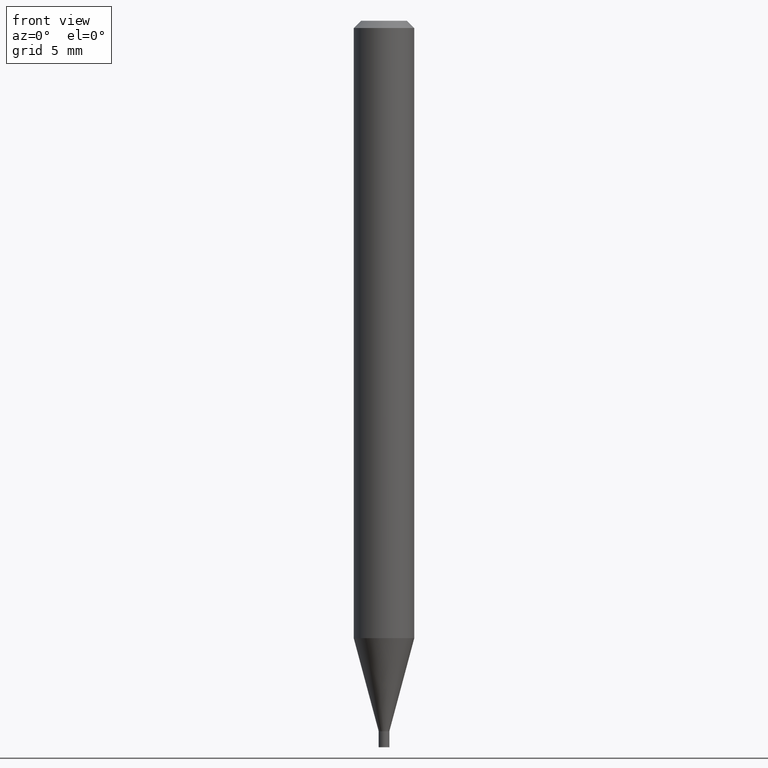
[diagram: clean part render]
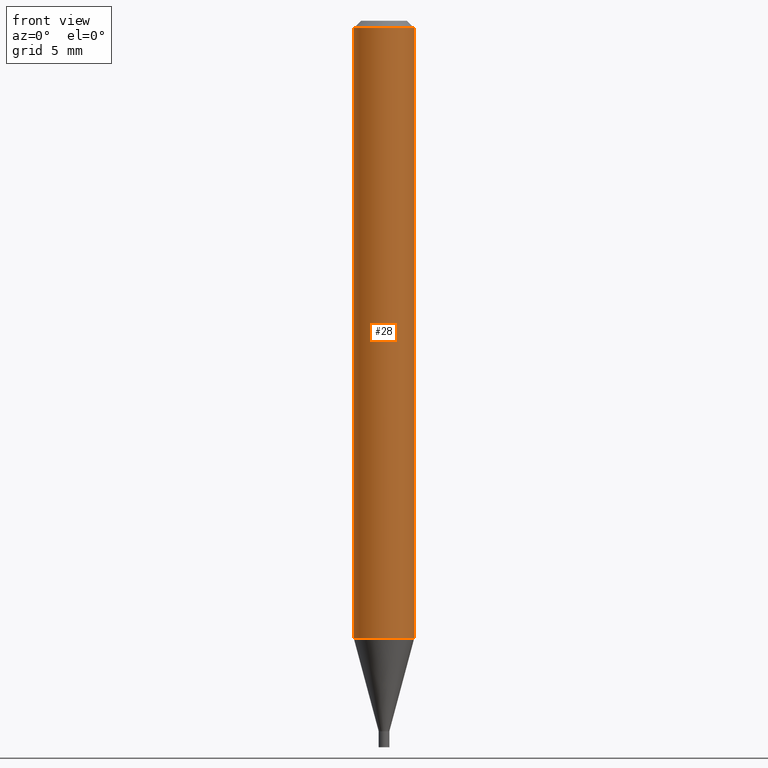
[diagram: same view with one face highlighted and labeled with its STEP entity id]
A machine part, front view. The second image highlights one B-rep face of the part: STEP entity #28.
In plain terms, the highlighted cylindrical surface (edge-blend (fillet) strip) has radius 1.5875 mm, axis along (-0, 0, 1).
Its self-contained STEP definition (entity closure, byte-faithful):
#2 = VERTEX_POINT ( 'NONE', #393 ) ;
#8 = DIRECTION ( 'NONE',  ( -2.445468806185136597E-29, 3.491481338843145583E-15, 1.000000000000000000 ) ) ;
#28 = ADVANCED_FACE ( 'NONE', ( #142 ), #282, .T. ) ;
#52 = DIRECTION ( 'NONE',  ( -2.445468806185136597E-29, 3.491481338843145583E-15, 1.000000000000000000 ) ) ;
#68 = DIRECTION ( 'NONE',  ( 1.000000000000000000, -6.982962677686262766E-15, 0.000000000000000000 ) ) ;
#85 = CARTESIAN_POINT ( 'NONE',  ( 0.06250000000000000000, -4.364351673553916694E-16, 3.047610484872459871E-30 ) ) ;
#91 = CARTESIAN_POINT ( 'NONE',  ( -0.06250000000000000000, -4.006849048095413862E-15, -1.274799383410204268 ) ) ;
#95 = AXIS2_PLACEMENT_3D ( 'NONE', #133, #8, #68 ) ;
#105 = ORIENTED_EDGE ( 'NONE', *, *, #150, .T. ) ;
#108 = AXIS2_PLACEMENT_3D ( 'NONE', #151, #52, #222 ) ;
#110 = EDGE_CURVE ( 'NONE', #2, #128, #270, .T. ) ;
#112 = DIRECTION ( 'NONE',  ( -2.445468806185136877E-29, 3.491481338843145188E-15, 1.000000000000000000 ) ) ;
#128 = VERTEX_POINT ( 'NONE', #180 ) ;
#131 = LINE ( 'NONE', #380, #226 ) ;
#133 = CARTESIAN_POINT ( 'NONE',  ( 3.117482126273700423E-29, -4.450938257945477267E-15, -1.274799383410204268 ) ) ;
#134 = CARTESIAN_POINT ( 'NONE',  ( 0.000000000000000000, 0.000000000000000000, 0.000000000000000000 ) ) ;
#139 = EDGE_LOOP ( 'NONE', ( #432, #269, #105, #169 ) ) ;
#142 = FACE_OUTER_BOUND ( 'NONE', #139, .T. ) ;
#150 = EDGE_CURVE ( 'NONE', #466, #128, #405, .T. ) ;
#151 = CARTESIAN_POINT ( 'NONE',  ( 3.668203209277705088E-31, -5.237222008264718399E-17, -0.01499999999999999944 ) ) ;
#152 = AXIS2_PLACEMENT_3D ( 'NONE', #134, #208, #351 ) ;
#169 = ORIENTED_EDGE ( 'NONE', *, *, #110, .F. ) ;
#173 = CIRCLE ( 'NONE', #95, 0.06250000000000000000 ) ;
#180 = CARTESIAN_POINT ( 'NONE',  ( 0.06250000000000000000, -4.888073874380388472E-16, -0.01499999999999999944 ) ) ;
#208 = DIRECTION ( 'NONE',  ( -2.445468806185136597E-29, 3.491481338843145583E-15, 1.000000000000000000 ) ) ;
#222 = DIRECTION ( 'NONE',  ( 1.000000000000000000, -6.982962677686266711E-15, 0.000000000000000000 ) ) ;
#226 = VECTOR ( 'NONE', #263, 39.37007874015748143 ) ;
#263 = DIRECTION ( 'NONE',  ( -2.445468806185136877E-29, 3.491481338843145188E-15, 1.000000000000000000 ) ) ;
#269 = ORIENTED_EDGE ( 'NONE', *, *, #409, .T. ) ;
#270 = CIRCLE ( 'NONE', #108, 0.06250000000000000000 ) ;
#282 = CYLINDRICAL_SURFACE ( 'NONE', #152, 0.06250000000000000000 ) ;
#292 = VECTOR ( 'NONE', #112, 39.37007874015748143 ) ;
#296 = EDGE_CURVE ( 'NONE', #338, #2, #131, .T. ) ;
#338 = VERTEX_POINT ( 'NONE', #91 ) ;
#351 = DIRECTION ( 'NONE',  ( 1.000000000000000000, -6.982962677686266711E-15, 4.876176775795935793E-29 ) ) ;
#380 = CARTESIAN_POINT ( 'NONE',  ( -0.06250000000000000000, 4.440892098500626162E-16, -3.074334431409316114E-30 ) ) ;
#385 = CARTESIAN_POINT ( 'NONE',  ( 0.06250000000000000000, -4.887373425300868148E-15, -1.274799383410204268 ) ) ;
#393 = CARTESIAN_POINT ( 'NONE',  ( -0.06250000000000000000, -1.807566029163999360E-15, -0.01499999999999999944 ) ) ;
#405 = LINE ( 'NONE', #85, #292 ) ;
#409 = EDGE_CURVE ( 'NONE', #338, #466, #173, .T. ) ;
#432 = ORIENTED_EDGE ( 'NONE', *, *, #296, .F. ) ;
#466 = VERTEX_POINT ( 'NONE', #385 ) ;